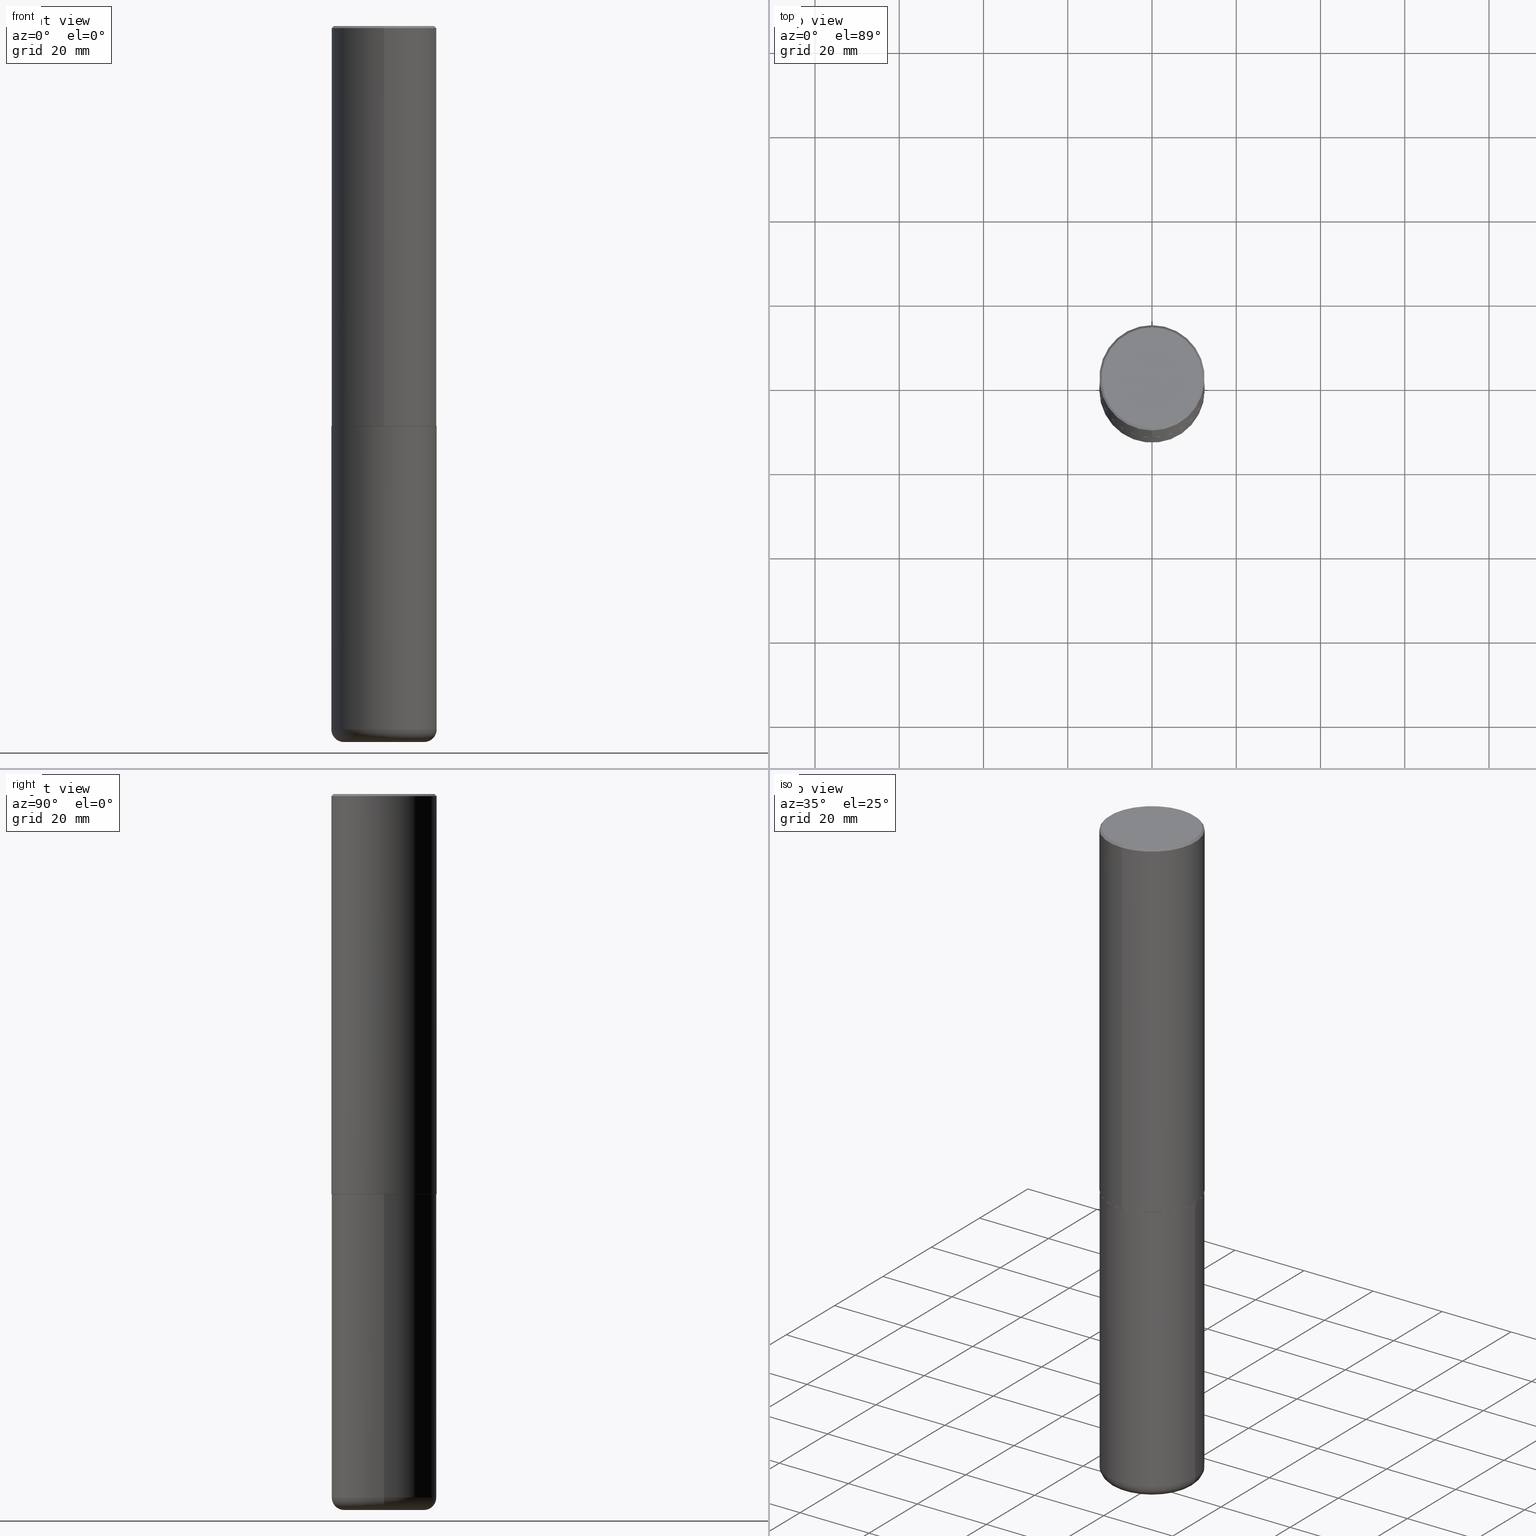
[diagram: canonical four-view strip — front | top / right | iso, engineering-drawing reading convention]
A machine part, canonical four-view strip (front | top / right | iso — engineering-drawing reading convention). The complete STEP part file that produces these views, byte-faithful:
ISO-10303-21;
HEADER;
FILE_DESCRIPTION (( 'STEP AP203' ),
    '1' );
FILE_NAME ('47627.STEP',
    '2024-03-06T19:43:34',
    ( '' ),
    ( '' ),
    'SwSTEP 2.0',
    'SolidWorks 2023',
    '' );
FILE_SCHEMA (( 'CONFIG_CONTROL_DESIGN' ));
ENDSEC;

DATA;
#1 = DIRECTION ( 'NONE',  ( 6.982962677686265922E-15, 1.000000000000000000, -3.486624039460257331E-15 ) ) ;
#2 = CARTESIAN_POINT ( 'NONE',  ( 1.607846830690603466E-28, -2.295579150662591525E-14, -6.574799999999999756 ) ) ;
#3 = CIRCLE ( 'NONE', #237, 0.4921500000000003650 ) ;
#4 = EDGE_CURVE ( 'NONE', #90, #194, #148, .T. ) ;
#5 = CALENDAR_DATE ( 2024, 6, 3 ) ;
#6 = EDGE_LOOP ( 'NONE', ( #307, #13, #275, #348 ) ) ;
#7 = FACE_OUTER_BOUND ( 'NONE', #107, .T. ) ;
#8 = EDGE_CURVE ( 'NONE', #330, #132, #64, .T. ) ;
#9 = ORIENTED_EDGE ( 'NONE', *, *, #235, .T. ) ;
#10 = ORIENTED_EDGE ( 'NONE', *, *, #299, .F. ) ;
#11 = PERSON_AND_ORGANIZATION_ROLE ( 'design_supplier' ) ;
#12 = CC_DESIGN_APPROVAL ( #239, ( #68 ) ) ;
#13 = ORIENTED_EDGE ( 'NONE', *, *, #59, .T. ) ;
#14 = EDGE_CURVE ( 'NONE', #160, #132, #167, .T. ) ;
#15 = PERSON_AND_ORGANIZATION ( #364, #173 ) ;
#16 = LINE ( 'NONE', #143, #161 ) ;
#17 = DIRECTION ( 'NONE',  ( 1.000000000000000000, -6.982962677686265133E-15, 0.000000000000000000 ) ) ;
#18 = AXIS2_PLACEMENT_3D ( 'NONE', #259, #310, #17 ) ;
#19 = CC_DESIGN_PERSON_AND_ORGANIZATION_ASSIGNMENT ( #327, #229, ( #68 ) ) ;
#20 = FACE_OUTER_BOUND ( 'NONE', #371, .T. ) ;
#21 = ORIENTED_EDGE ( 'NONE', *, *, #389, .F. ) ;
#22 = CARTESIAN_POINT ( 'NONE',  ( 3.366835455046432084E-15, 0.4721499999999996255, -1.426540264649568516E-15 ) ) ;
#23 = EDGE_LOOP ( 'NONE', ( #211, #81, #202, #304 ) ) ;
#24 = DESIGN_CONTEXT ( 'detailed design', #322, 'design' ) ;
#25 = FACE_OUTER_BOUND ( 'NONE', #120, .T. ) ;
#26 = CARTESIAN_POINT ( 'NONE',  ( -0.4921499999999999764, 3.496936074043332897E-15, -2.420853904668951509E-29 ) ) ;
#27 = CARTESIAN_POINT ( 'NONE',  ( 3.493383360364624690E-15, 0.4911499999999869304, -3.740100000000001312 ) ) ;
#28 = AXIS2_PLACEMENT_3D ( 'NONE', #222, #156, #353 ) ;
#29 = FACE_OUTER_BOUND ( 'NONE', #409, .T. ) ;
#30 = DIRECTION ( 'NONE',  ( -2.445468806185136597E-29, 3.491481338843145583E-15, 1.000000000000000000 ) ) ;
#31 = DIRECTION ( 'NONE',  ( -4.851104656540955597E-15, -0.7071067811865487940, -0.7071067811865461294 ) ) ;
#32 = AXIS2_PLACEMENT_3D ( 'NONE', #401, #375, #349 ) ;
#33 = EDGE_CURVE ( 'NONE', #378, #305, #276, .T. ) ;
#34 = CONICAL_SURFACE ( 'NONE', #187, 0.4921499999999999209, 0.7853981633974467247 ) ;
#35 =( NAMED_UNIT ( * ) PLANE_ANGLE_UNIT ( ) SI_UNIT ( $, .RADIAN. ) );
#36 =( LENGTH_UNIT ( ) NAMED_UNIT ( * ) SI_UNIT ( $, .METRE. ) );
#37 = ORIENTED_EDGE ( 'NONE', *, *, #193, .F. ) ;
#38 = PERSON_AND_ORGANIZATION ( #364, #173 ) ;
#39 = APPLICATION_PROTOCOL_DEFINITION ( 'international standard', 'config_control_design', 1994, #102 ) ;
#40 = CLOSED_SHELL ( 'NONE', ( #99, #157, #372, #252, #268, #262, #73, #302 ) ) ;
#41 = CC_DESIGN_PERSON_AND_ORGANIZATION_ASSIGNMENT ( #136, #207, ( #257 ) ) ;
#42 = CARTESIAN_POINT ( 'NONE',  ( 0.000000000000000000, 0.000000000000000000, 0.000000000000000000 ) ) ;
#43 = ORIENTED_EDGE ( 'NONE', *, *, #290, .F. ) ;
#44 = AXIS2_PLACEMENT_3D ( 'NONE', #352, #225, #113 ) ;
#45 = CALENDAR_DATE ( 2024, 6, 3 ) ;
#46 = SHAPE_DEFINITION_REPRESENTATION ( #295, #324 ) ;
#47 = CC_DESIGN_DATE_AND_TIME_ASSIGNMENT ( #175, #395, ( #224 ) ) ;
#48 = AXIS2_PLACEMENT_3D ( 'NONE', #346, #65, #153 ) ;
#49 = PERSON_AND_ORGANIZATION_ROLE ( 'classification_officer' ) ;
#50 = APPROVAL_PERSON_ORGANIZATION ( #397, #86, #306 ) ;
#51 = CIRCLE ( 'NONE', #393, 0.4911499999999999755 ) ;
#52 = LINE ( 'NONE', #110, #379 ) ;
#53 = ORIENTED_EDGE ( 'NONE', *, *, #114, .T. ) ;
#54 = CIRCLE ( 'NONE', #335, 0.4921500000000003650 ) ;
#55 = DIRECTION ( 'NONE',  ( -6.982962677686265922E-15, -1.000000000000000000, 3.490754157143982552E-15 ) ) ;
#56 = ORIENTED_EDGE ( 'NONE', *, *, #78, .T. ) ;
#57 = CARTESIAN_POINT ( 'NONE',  ( -3.307789109625541747E-15, -0.4721499999999996255, 1.869778885941491673E-15 ) ) ;
#58 = VERTEX_POINT ( 'NONE', #22 ) ;
#59 = EDGE_CURVE ( 'NONE', #90, #79, #3, .T. ) ;
#60 = DIRECTION ( 'NONE',  ( -6.982962677686265922E-15, -1.000000000000000000, 3.337287582609300506E-15 ) ) ;
#61 = MANIFOLD_SOLID_BREP ( 'Body-Move/Copy2[2]', #40 ) ;
#62 = ORIENTED_EDGE ( 'NONE', *, *, #396, .T. ) ;
#63 = DIRECTION ( 'NONE',  ( -2.445468806185136597E-29, 3.491481338843145583E-15, 1.000000000000000000 ) ) ;
#64 = LINE ( 'NONE', #26, #92 ) ;
#65 = DIRECTION ( 'NONE',  ( -2.445976594451651952E-29, 3.490754157143982552E-15, 1.000000000000000000 ) ) ;
#66 = ORIENTED_EDGE ( 'NONE', *, *, #133, .T. ) ;
#67 = COORDINATED_UNIVERSAL_TIME_OFFSET ( 5, 0, .BEHIND. ) ;
#68 = PRODUCT_DEFINITION ( 'UNKNOWN', '', #257, #24 ) ;
#69 = MECHANICAL_CONTEXT ( 'NONE', #102, 'mechanical' ) ;
#70 = DIRECTION ( 'NONE',  ( -6.982962677686265922E-15, -1.000000000000000000, 3.490754157143982946E-15 ) ) ;
#71 = DIRECTION ( 'NONE',  ( 1.000000000000000000, 0.000000000000000000, 0.000000000000000000 ) ) ;
#72 = APPROVAL_PERSON_ORGANIZATION ( #38, #109, #197 ) ;
#73 = ADVANCED_FACE ( 'NONE', ( #144 ), #384, .F. ) ;
#74 = PERSON_AND_ORGANIZATION ( #364, #173 ) ;
#75 = EDGE_CURVE ( 'NONE', #79, #178, #320, .T. ) ;
#76 = VECTOR ( 'NONE', #315, 39.37007874015748143 ) ;
#77 = COORDINATED_UNIVERSAL_TIME_OFFSET ( 5, 0, .BEHIND. ) ;
#78 = EDGE_CURVE ( 'NONE', #132, #160, #387, .T. ) ;
#79 = VERTEX_POINT ( 'NONE', #247 ) ;
#80 = DIRECTION ( 'NONE',  ( -2.445468806185136597E-29, 3.491481338843145583E-15, 1.000000000000000000 ) ) ;
#81 = ORIENTED_EDGE ( 'NONE', *, *, #389, .T. ) ;
#82 = CARTESIAN_POINT ( 'NONE',  ( 4.891953188903329688E-31, -6.981508314288001687E-17, -0.02000000000000010797 ) ) ;
#83 = CARTESIAN_POINT ( 'NONE',  ( 1.636727817291649966E-28, -2.336813545274328780E-14, -6.692899999999999849 ) ) ;
#84 = AXIS2_PLACEMENT_3D ( 'NONE', #180, #251, #312 ) ;
#85 = DIRECTION ( 'NONE',  ( 6.982962677686265922E-15, 1.000000000000000000, -3.486624039460257331E-15 ) ) ;
#86 = APPROVAL ( #106, 'UNSPECIFIED' ) ;
#87 = FACE_OUTER_BOUND ( 'NONE', #274, .T. ) ;
#88 = AXIS2_PLACEMENT_3D ( 'NONE', #184, #385, #150 ) ;
#89 = DIRECTION ( 'NONE',  ( 1.000000000000000000, -6.982962677686265133E-15, 0.000000000000000000 ) ) ;
#90 = VERTEX_POINT ( 'NONE', #376 ) ;
#91 = DIRECTION ( 'NONE',  ( 2.445976594451651392E-29, -3.490754157143982552E-15, -1.000000000000000000 ) ) ;
#92 = VECTOR ( 'NONE', #149, 39.37007874015748143 ) ;
#93 = APPROVAL_STATUS ( 'not_yet_approved' ) ;
#94 = ADVANCED_FACE ( 'NONE', ( #408 ), #119, .T. ) ;
#95 = DIRECTION ( 'NONE',  ( 5.024295867790978808E-15, 0.7071067811869604647, 0.7071067811861345698 ) ) ;
#96 = CC_DESIGN_APPROVAL ( #86, ( #224 ) ) ;
#97 = AXIS2_PLACEMENT_3D ( 'NONE', #82, #411, #292 ) ;
#98 = DATE_TIME_ROLE ( 'creation_date' ) ;
#99 = ADVANCED_FACE ( 'NONE', ( #183 ), #336, .T. ) ;
#100 = LINE ( 'NONE', #159, #152 ) ;
#101 = CARTESIAN_POINT ( 'NONE',  ( 0.000000000000000000, 0.000000000000000000, 0.000000000000000000 ) ) ;
#102 = APPLICATION_CONTEXT ( 'configuration controlled 3d designs of mechanical parts and assemblies' ) ;
#103 = ADVANCED_FACE ( 'NONE', ( #316 ), #405, .T. ) ;
#104 = CLOSED_SHELL ( 'NONE', ( #103, #204, #163, #130, #286, #94 ) ) ;
#105 = ORIENTED_EDGE ( 'NONE', *, *, #122, .F. ) ;
#106 = APPROVAL_STATUS ( 'not_yet_approved' ) ;
#107 = EDGE_LOOP ( 'NONE', ( #248, #56 ) ) ;
#108 = EDGE_CURVE ( 'NONE', #178, #194, #250, .T. ) ;
#109 = APPROVAL ( #164, 'UNSPECIFIED' ) ;
#110 = CARTESIAN_POINT ( 'NONE',  ( 3.436665081823295777E-15, 0.4921499999999998098, -0.02000000000000182188 ) ) ;
#111 = ORIENTED_EDGE ( 'NONE', *, *, #165, .F. ) ;
#112 = CIRCLE ( 'NONE', #97, 0.4921499999999999209 ) ;
#113 = DIRECTION ( 'NONE',  ( -1.000000000000000000, 6.982962677686265922E-15, -4.876176775795935793E-29 ) ) ;
#114 = EDGE_CURVE ( 'NONE', #378, #330, #267, .T. ) ;
#115 = DIRECTION ( 'NONE',  ( -2.445468806185136597E-29, 3.491481338843145583E-15, 1.000000000000000000 ) ) ;
#116 = DIRECTION ( 'NONE',  ( 6.982962677686265922E-15, 1.000000000000000000, -3.490754157143982552E-15 ) ) ;
#117 = DIRECTION ( 'NONE',  ( -2.445976594451651672E-29, 3.490754157143982552E-15, 1.000000000000000000 ) ) ;
#118 = CC_DESIGN_PERSON_AND_ORGANIZATION_ASSIGNMENT ( #232, #359, ( #357 ) ) ;
#119 = PLANE ( 'NONE',  #360 ) ;
#120 = EDGE_LOOP ( 'NONE', ( #340, #334, #368, #21 ) ) ;
#121 = ORIENTED_EDGE ( 'NONE', *, *, #345, .F. ) ;
#122 = EDGE_CURVE ( 'NONE', #305, #378, #145, .T. ) ;
#123 = CARTESIAN_POINT ( 'NONE',  ( 3.436665081823295777E-15, 0.4921499999999998098, -0.02000000000000182188 ) ) ;
#124 = CARTESIAN_POINT ( 'NONE',  ( 0.000000000000000000, 0.000000000000000000, 0.000000000000000000 ) ) ;
#125 = EDGE_LOOP ( 'NONE', ( #265, #277, #382, #139 ) ) ;
#126 = CARTESIAN_POINT ( 'NONE',  ( 0.000000000000000000, 0.000000000000000000, 0.000000000000000000 ) ) ;
#127 =( CONVERSION_BASED_UNIT ( 'INCH', #234 ) LENGTH_UNIT ( ) NAMED_UNIT ( #230 ) );
#128 = EDGE_LOOP ( 'NONE', ( #37, #10 ) ) ;
#129 = COORDINATED_UNIVERSAL_TIME_OFFSET ( 5, 0, .BEHIND. ) ;
#130 = ADVANCED_FACE ( 'NONE', ( #279 ), #399, .T. ) ;
#131 = COORDINATED_UNIVERSAL_TIME_OFFSET ( 5, 0, .BEHIND. ) ;
#132 = VERTEX_POINT ( 'NONE', #201 ) ;
#133 = EDGE_CURVE ( 'NONE', #58, #194, #52, .T. ) ;
#134 = AXIS2_PLACEMENT_3D ( 'NONE', #182, #314, #343 ) ;
#135 = CC_DESIGN_PERSON_AND_ORGANIZATION_ASSIGNMENT ( #74, #11, ( #257 ) ) ;
#136 = PERSON_AND_ORGANIZATION ( #364, #173 ) ;
#137 = PLANE ( 'NONE',  #44 ) ;
#138 = EDGE_LOOP ( 'NONE', ( #168, #291, #121, #203 ) ) ;
#139 = ORIENTED_EDGE ( 'NONE', *, *, #75, .F. ) ;
#140 = PRODUCT_RELATED_PRODUCT_CATEGORY ( 'detail', '', ( #357 ) ) ;
#141 = COORDINATED_UNIVERSAL_TIME_OFFSET ( 5, 0, .BEHIND. ) ;
#142 = AXIS2_PLACEMENT_3D ( 'NONE', #388, #166, #70 ) ;
#143 = CARTESIAN_POINT ( 'NONE',  ( 0.4921499999999999764, -3.436665081823295777E-15, 2.399810400207969603E-29 ) ) ;
#144 = FACE_OUTER_BOUND ( 'NONE', #128, .T. ) ;
#145 = CIRCLE ( 'NONE', #18, 0.3740499999999999381 ) ;
#146 = EDGE_CURVE ( 'NONE', #284, #160, #16, .T. ) ;
#147 = DIRECTION ( 'NONE',  ( 2.445976594451651952E-29, -3.490754157143982552E-15, -1.000000000000000000 ) ) ;
#148 = LINE ( 'NONE', #281, #76 ) ;
#149 = DIRECTION ( 'NONE',  ( -2.445468806185136877E-29, 3.491481338843145188E-15, 1.000000000000000000 ) ) ;
#150 = DIRECTION ( 'NONE',  ( -6.982962677686265922E-15, -1.000000000000000000, 3.337287582609300506E-15 ) ) ;
#151 = CARTESIAN_POINT ( 'NONE',  ( 9.148197060908621523E-29, -1.305576962313420868E-14, -3.740099999999999980 ) ) ;
#152 = VECTOR ( 'NONE', #191, 39.37007874015748143 ) ;
#153 = DIRECTION ( 'NONE',  ( -6.982962677686265922E-15, -1.000000000000000000, 3.337287582609300506E-15 ) ) ;
#154 = CARTESIAN_POINT ( 'NONE',  ( 9.148197060908621523E-29, -1.305576962313420868E-14, -3.740099999999999980 ) ) ;
#155 = DIRECTION ( 'NONE',  ( -6.982962677686266711E-15, -1.000000000000000000, 3.491481338843145583E-15 ) ) ;
#156 = DIRECTION ( 'NONE',  ( -2.445976594451651952E-29, 3.490754157143982552E-15, 1.000000000000000000 ) ) ;
#157 = ADVANCED_FACE ( 'NONE', ( #243 ), #332, .T. ) ;
#158 = CARTESIAN_POINT ( 'NONE',  ( 1.607846830690603466E-28, -2.295579150662591525E-14, -6.574799999999999756 ) ) ;
#159 = CARTESIAN_POINT ( 'NONE',  ( -3.429682119145517860E-15, -0.4911500000000130206, -3.740099999999998204 ) ) ;
#160 = VERTEX_POINT ( 'NONE', #172 ) ;
#161 = VECTOR ( 'NONE', #278, 39.37007874015748143 ) ;
#162 = APPROVAL_ROLE ( '' ) ;
#163 = ADVANCED_FACE ( 'NONE', ( #7 ), #137, .F. ) ;
#164 = APPROVAL_STATUS ( 'not_yet_approved' ) ;
#165 = EDGE_CURVE ( 'NONE', #205, #178, #179, .T. ) ;
#166 = DIRECTION ( 'NONE',  ( -2.445976594451651952E-29, 3.490754157143982552E-15, 1.000000000000000000 ) ) ;
#167 = CIRCLE ( 'NONE', #84, 0.4921499999999999764 ) ;
#168 = ORIENTED_EDGE ( 'NONE', *, *, #193, .T. ) ;
#169 = DIRECTION ( 'NONE',  ( -6.982962677686265922E-15, -1.000000000000000000, 3.490754157143982552E-15 ) ) ;
#170 = ORIENTED_EDGE ( 'NONE', *, *, #339, .T. ) ;
#171 = DATE_AND_TIME ( #5, #308 ) ;
#172 = CARTESIAN_POINT ( 'NONE',  ( 0.4921499999999999764, -1.649515443723054663E-14, -3.740100000000000424 ) ) ;
#173 = ORGANIZATION ( 'UNSPECIFIED', 'UNSPECIFIED', '' ) ;
#174 = VECTOR ( 'NONE', #31, 39.37007874015748854 ) ;
#175 = DATE_AND_TIME ( #45, #283 ) ;
#176 = DIRECTION ( 'NONE',  ( 4.937700262164540154E-15, 0.7071067811865440200, -0.7071067811865511255 ) ) ;
#177 = DIRECTION ( 'NONE',  ( 1.000000000000000000, -6.982962677686265922E-15, 0.000000000000000000 ) ) ;
#178 = VERTEX_POINT ( 'NONE', #415 ) ;
#179 = LINE ( 'NONE', #404, #174 ) ;
#180 = CARTESIAN_POINT ( 'NONE',  ( 9.146297882013029477E-29, -1.305848935540725085E-14, -3.740100000000000424 ) ) ;
#181 = ORIENTED_EDGE ( 'NONE', *, *, #122, .T. ) ;
#182 = CARTESIAN_POINT ( 'NONE',  ( -5.420756467185317189E-45, 7.736185299407739239E-31, 2.216193106459615290E-16 ) ) ;
#183 = FACE_OUTER_BOUND ( 'NONE', #138, .T. ) ;
#184 = CARTESIAN_POINT ( 'NONE',  ( 9.148197060908621523E-29, -1.305576962313420868E-14, -3.740099999999999980 ) ) ;
#185 = DIRECTION ( 'NONE',  ( -2.445976594451651952E-29, 3.490754157143982552E-15, 1.000000000000000000 ) ) ;
#186 = ORIENTED_EDGE ( 'NONE', *, *, #8, .T. ) ;
#187 = AXIS2_PLACEMENT_3D ( 'NONE', #361, #233, #1 ) ;
#188 = FACE_OUTER_BOUND ( 'NONE', #342, .T. ) ;
#189 = ORIENTED_EDGE ( 'NONE', *, *, #235, .F. ) ;
#190 = CARTESIAN_POINT ( 'NONE',  ( 0.3740499999999999381, -2.556776869621446119E-14, -6.574799999999999756 ) ) ;
#191 = DIRECTION ( 'NONE',  ( -4.937700262167413974E-15, -0.7071067811869555797, 0.7071067811861394548 ) ) ;
#192 = LOCAL_TIME ( 14, 43, 34.00000000000000000, #131 ) ;
#193 = EDGE_CURVE ( 'NONE', #242, #215, #51, .T. ) ;
#194 = VERTEX_POINT ( 'NONE', #123 ) ;
#195 = CALENDAR_DATE ( 2024, 6, 3 ) ;
#196 = APPROVAL_DATE_TIME ( #326, #239 ) ;
#197 = APPROVAL_ROLE ( '' ) ;
#198 = VECTOR ( 'NONE', #95, 39.37007874015748143 ) ;
#199 = ORIENTED_EDGE ( 'NONE', *, *, #339, .F. ) ;
#200 = ORIENTED_EDGE ( 'NONE', *, *, #417, .F. ) ;
#201 = CARTESIAN_POINT ( 'NONE',  ( -0.4921499999999999764, -1.451020435697325173E-14, -3.740100000000000424 ) ) ;
#202 = ORIENTED_EDGE ( 'NONE', *, *, #146, .T. ) ;
#203 = ORIENTED_EDGE ( 'NONE', *, *, #396, .F. ) ;
#204 = ADVANCED_FACE ( 'NONE', ( #188 ), #212, .T. ) ;
#205 = VERTEX_POINT ( 'NONE', #57 ) ;
#206 = CONICAL_SURFACE ( 'NONE', #354, 0.4921499999999999209, 0.7853981633974467247 ) ;
#207 = PERSON_AND_ORGANIZATION_ROLE ( 'creator' ) ;
#208 = DIRECTION ( 'NONE',  ( 1.000000000000000000, -6.982962677686265922E-15, 4.876176775795935793E-29 ) ) ;
#209 = AXIS2_PLACEMENT_3D ( 'NONE', #151, #244, #216 ) ;
#210 = AXIS2_PLACEMENT_3D ( 'NONE', #126, #285, #55 ) ;
#211 = ORIENTED_EDGE ( 'NONE', *, *, #8, .F. ) ;
#212 = TOROIDAL_SURFACE ( 'NONE', #32, 0.3740499999999999381, 0.1181000000000000660 ) ;
#213 = CIRCLE ( 'NONE', #287, 0.4921500000000000319 ) ;
#214 = CARTESIAN_POINT ( 'NONE',  ( 4.891953188903329688E-31, -6.981508314288001687E-17, -0.02000000000000010797 ) ) ;
#215 = VERTEX_POINT ( 'NONE', #27 ) ;
#216 = DIRECTION ( 'NONE',  ( -6.982962677686265922E-15, -1.000000000000000000, 3.490754157143982552E-15 ) ) ;
#217 = CARTESIAN_POINT ( 'NONE',  ( -3.429682119145517860E-15, -0.4911500000000130206, -3.740099999999998204 ) ) ;
#218 = VECTOR ( 'NONE', #117, 39.37007874015748143 ) ;
#219 = DIRECTION ( 'NONE',  ( 2.438088387897960049E-29, -3.491481338843145188E-15, -1.000000000000000000 ) ) ;
#220 = ORIENTED_EDGE ( 'NONE', *, *, #59, .F. ) ;
#221 = FACE_OUTER_BOUND ( 'NONE', #313, .T. ) ;
#222 = CARTESIAN_POINT ( 'NONE',  ( 4.891953188903329688E-31, -6.981508314288001687E-17, -0.02000000000000010797 ) ) ;
#223 = ORIENTED_EDGE ( 'NONE', *, *, #238, .T. ) ;
#224 = SECURITY_CLASSIFICATION ( '', '', #303 ) ;
#225 = DIRECTION ( 'NONE',  ( 2.438088387897960049E-29, -3.491481338843145188E-15, -1.000000000000000000 ) ) ;
#226 = DIRECTION ( 'NONE',  ( -6.982962677686265922E-15, -1.000000000000000000, 3.337287582609300506E-15 ) ) ;
#227 = CARTESIAN_POINT ( 'NONE',  ( 3.297005828269567997E-15, 0.4721499999999996255, -1.537349919972549256E-15 ) ) ;
#228 = CARTESIAN_POINT ( 'NONE',  ( 9.146297882013029477E-29, -1.305848935540725085E-14, -3.740100000000000424 ) ) ;
#229 = PERSON_AND_ORGANIZATION_ROLE ( 'creator' ) ;
#230 = DIMENSIONAL_EXPONENTS ( 1.000000000000000000, 0.000000000000000000, 0.000000000000000000, 0.000000000000000000, 0.000000000000000000, 0.000000000000000000, 0.000000000000000000 ) ;
#231 = CIRCLE ( 'NONE', #88, 0.4911499999999999755 ) ;
#232 = PERSON_AND_ORGANIZATION ( #364, #173 ) ;
#233 = DIRECTION ( 'NONE',  ( 2.445976594451651952E-29, -3.490754157143982552E-15, -1.000000000000000000 ) ) ;
#234 = LENGTH_MEASURE_WITH_UNIT ( LENGTH_MEASURE( 0.02539999999999999897 ), #36 );
#235 = EDGE_CURVE ( 'NONE', #58, #205, #273, .T. ) ;
#236 = ORIENTED_EDGE ( 'NONE', *, *, #14, .F. ) ;
#237 = AXIS2_PLACEMENT_3D ( 'NONE', #373, #402, #289 ) ;
#238 = EDGE_CURVE ( 'NONE', #194, #178, #112, .T. ) ;
#239 = APPROVAL ( #93, 'UNSPECIFIED' ) ;
#240 = DATE_AND_TIME ( #269, #192 ) ;
#241 = AXIS2_PLACEMENT_3D ( 'NONE', #154, #185, #226 ) ;
#242 = VERTEX_POINT ( 'NONE', #217 ) ;
#243 = FACE_OUTER_BOUND ( 'NONE', #125, .T. ) ;
#244 = DIRECTION ( 'NONE',  ( -2.445976594451651392E-29, 3.490754157143982552E-15, 1.000000000000000000 ) ) ;
#245 = EDGE_LOOP ( 'NONE', ( #170, #186, #236, #400 ) ) ;
#246 = LOCAL_TIME ( 14, 43, 34.00000000000000000, #129 ) ;
#247 = CARTESIAN_POINT ( 'NONE',  ( -3.436665081823207030E-15, -0.4921500000000134101, -3.739099999999998758 ) ) ;
#248 = ORIENTED_EDGE ( 'NONE', *, *, #14, .T. ) ;
#249 = DIRECTION ( 'NONE',  ( 1.000000000000000000, -6.982962677686265133E-15, 0.000000000000000000 ) ) ;
#250 = CIRCLE ( 'NONE', #28, 0.4921499999999999209 ) ;
#251 = DIRECTION ( 'NONE',  ( -2.445468806185136597E-29, 3.491481338843145583E-15, 1.000000000000000000 ) ) ;
#252 = ADVANCED_FACE ( 'NONE', ( #29 ), #206, .T. ) ;
#253 = DIRECTION ( 'NONE',  ( -2.445976594451651952E-29, 3.490754157143982552E-15, 1.000000000000000000 ) ) ;
#254 = CARTESIAN_POINT ( 'NONE',  ( -0.3740499999999999381, -2.029800640351526055E-14, -6.574799999999999756 ) ) ;
#255 = ORIENTED_EDGE ( 'NONE', *, *, #299, .T. ) ;
#256 = TOROIDAL_SURFACE ( 'NONE', #350, 0.3740499999999999381, 0.1181000000000000660 ) ;
#257 = PRODUCT_DEFINITION_FORMATION_WITH_SPECIFIED_SOURCE ( 'ANY', '', #357, .NOT_KNOWN. ) ;
#258 = DIRECTION ( 'NONE',  ( 1.000000000000000000, -6.982962677686270655E-15, 0.000000000000000000 ) ) ;
#259 = CARTESIAN_POINT ( 'NONE',  ( 1.636727817291649966E-28, -2.336813545274328780E-14, -6.692899999999999849 ) ) ;
#260 = UNCERTAINTY_MEASURE_WITH_UNIT (LENGTH_MEASURE( 1.000000000000000082E-05 ), #127, 'distance_accuracy_value', 'NONE');
#261 = PLANE ( 'NONE',  #414 ) ;
#262 = ADVANCED_FACE ( 'NONE', ( #221 ), #366, .T. ) ;
#263 = APPROVAL_PERSON_ORGANIZATION ( #323, #239, #162 ) ;
#264 = AXIS2_PLACEMENT_3D ( 'NONE', #158, #386, #249 ) ;
#265 = ORIENTED_EDGE ( 'NONE', *, *, #345, .T. ) ;
#266 = EDGE_LOOP ( 'NONE', ( #105, #374 ) ) ;
#267 = CIRCLE ( 'NONE', #300, 0.1181000000000000383 ) ;
#268 = ADVANCED_FACE ( 'NONE', ( #355 ), #319, .T. ) ;
#269 = CALENDAR_DATE ( 2024, 6, 3 ) ;
#270 = CC_DESIGN_PERSON_AND_ORGANIZATION_ASSIGNMENT ( #15, #49, ( #224 ) ) ;
#271 = CARTESIAN_POINT ( 'NONE',  ( 0.000000000000000000, 0.000000000000000000, 0.000000000000000000 ) ) ;
#272 = CIRCLE ( 'NONE', #370, 0.1181000000000000383 ) ;
#273 = CIRCLE ( 'NONE', #134, 0.4721499999999996255 ) ;
#274 = EDGE_LOOP ( 'NONE', ( #344, #394, #410, #403 ) ) ;
#275 = ORIENTED_EDGE ( 'NONE', *, *, #75, .T. ) ;
#276 = CIRCLE ( 'NONE', #325, 0.3740499999999999381 ) ;
#277 = ORIENTED_EDGE ( 'NONE', *, *, #4, .T. ) ;
#278 = DIRECTION ( 'NONE',  ( -2.445468806185136877E-29, 3.491481338843145188E-15, 1.000000000000000000 ) ) ;
#279 = FACE_OUTER_BOUND ( 'NONE', #23, .T. ) ;
#280 = CARTESIAN_POINT ( 'NONE',  ( 9.148197060908621523E-29, -1.305576962313420868E-14, -3.740099999999999980 ) ) ;
#281 = CARTESIAN_POINT ( 'NONE',  ( 3.496936074043333291E-15, 0.4921500000000000874, -1.717974658438411319E-15 ) ) ;
#282 = CARTESIAN_POINT ( 'NONE',  ( -3.436665081823296565E-15, -0.4921500000000000874, 1.717974658438411319E-15 ) ) ;
#283 = LOCAL_TIME ( 14, 43, 34.00000000000000000, #77 ) ;
#284 = VERTEX_POINT ( 'NONE', #406 ) ;
#285 = DIRECTION ( 'NONE',  ( -2.445976594451651952E-29, 3.490754157143982552E-15, 1.000000000000000000 ) ) ;
#286 = ADVANCED_FACE ( 'NONE', ( #25 ), #256, .T. ) ;
#287 = AXIS2_PLACEMENT_3D ( 'NONE', #2, #416, #296 ) ;
#288 = DIRECTION ( 'NONE',  ( -2.445976594451651952E-29, 3.490754157143982552E-15, 1.000000000000000000 ) ) ;
#289 = DIRECTION ( 'NONE',  ( -6.982962677686265922E-15, -1.000000000000000000, 3.330506545156063496E-15 ) ) ;
#290 = EDGE_CURVE ( 'NONE', #305, #284, #272, .T. ) ;
#291 = ORIENTED_EDGE ( 'NONE', *, *, #417, .T. ) ;
#292 = DIRECTION ( 'NONE',  ( -6.982962677686265922E-15, -1.000000000000000000, 3.486624039460257331E-15 ) ) ;
#293 = DIRECTION ( 'NONE',  ( 7.105427357601001859E-15, 1.000000000000000000, -3.491481338843145583E-15 ) ) ;
#294 = DIRECTION ( 'NONE',  ( 1.000000000000000000, -6.982962677686266711E-15, 4.883557194083112340E-29 ) ) ;
#295 = PRODUCT_DEFINITION_SHAPE ( 'NONE', 'NONE',  #68 ) ;
#296 = DIRECTION ( 'NONE',  ( 1.000000000000000000, -6.982962677686265133E-15, 0.000000000000000000 ) ) ;
#297 = CALENDAR_DATE ( 2024, 6, 3 ) ;
#298 = APPLICATION_PROTOCOL_DEFINITION ( 'international standard', 'config_control_design', 1994, #322 ) ;
#299 = EDGE_CURVE ( 'NONE', #215, #242, #231, .T. ) ;
#300 = AXIS2_PLACEMENT_3D ( 'NONE', #254, #293, #351 ) ;
#301 = CARTESIAN_POINT ( 'NONE',  ( 3.489830646685823002E-15, 0.4911499999999869304, -3.740100000000001312 ) ) ;
#302 = ADVANCED_FACE ( 'NONE', ( #20 ), #261, .F. ) ;
#303 = SECURITY_CLASSIFICATION_LEVEL ( 'unclassified' ) ;
#304 = ORIENTED_EDGE ( 'NONE', *, *, #78, .F. ) ;
#305 = VERTEX_POINT ( 'NONE', #321 ) ;
#306 = APPROVAL_ROLE ( '' ) ;
#307 = ORIENTED_EDGE ( 'NONE', *, *, #4, .F. ) ;
#308 = LOCAL_TIME ( 14, 43, 34.00000000000000000, #141 ) ;
#309 = CIRCLE ( 'NONE', #264, 0.4921500000000000319 ) ;
#310 = DIRECTION ( 'NONE',  ( -2.445468806185136597E-29, 3.491481338843145583E-15, 1.000000000000000000 ) ) ;
#311 = CARTESIAN_POINT ( 'NONE',  ( 1.607846830690603466E-28, -2.295579150662591525E-14, -6.574799999999999756 ) ) ;
#312 = DIRECTION ( 'NONE',  ( 1.000000000000000000, -6.982962677686265922E-15, 0.000000000000000000 ) ) ;
#313 = EDGE_LOOP ( 'NONE', ( #200, #255, #62, #220 ) ) ;
#314 = DIRECTION ( 'NONE',  ( -2.445976594451651952E-29, 3.490754157143982552E-15, 1.000000000000000000 ) ) ;
#315 = DIRECTION ( 'NONE',  ( -2.445976594451651672E-29, 3.490754157143982552E-15, 1.000000000000000000 ) ) ;
#316 = FACE_OUTER_BOUND ( 'NONE', #245, .T. ) ;
#317 = LOCAL_TIME ( 14, 43, 34.00000000000000000, #67 ) ;
#318 = CARTESIAN_POINT ( 'NONE',  ( -0.4921499999999999764, -1.945885543258258157E-14, -6.574799999999999756 ) ) ;
#319 = CYLINDRICAL_SURFACE ( 'NONE', #210, 0.4921500000000000874 ) ;
#320 = LINE ( 'NONE', #282, #218 ) ;
#321 = CARTESIAN_POINT ( 'NONE',  ( 0.3740499999999999381, -2.598011264233183690E-14, -6.692899999999999849 ) ) ;
#322 = APPLICATION_CONTEXT ( 'configuration controlled 3d designs of mechanical parts and assemblies' ) ;
#323 = PERSON_AND_ORGANIZATION ( #364, #173 ) ;
#324 = ADVANCED_BREP_SHAPE_REPRESENTATION ( '47627', ( #337, #61, #356 ), #377 ) ;
#325 = AXIS2_PLACEMENT_3D ( 'NONE', #412, #80, #89 ) ;
#326 = DATE_AND_TIME ( #195, #246 ) ;
#327 = PERSON_AND_ORGANIZATION ( #364, #173 ) ;
#328 = CC_DESIGN_DATE_AND_TIME_ASSIGNMENT ( #391, #98, ( #68 ) ) ;
#329 = DIRECTION ( 'NONE',  ( 0.000000000000000000, 0.000000000000000000, 1.000000000000000000 ) ) ;
#330 = VERTEX_POINT ( 'NONE', #318 ) ;
#331 = AXIS2_PLACEMENT_3D ( 'NONE', #228, #115, #177 ) ;
#332 = CYLINDRICAL_SURFACE ( 'NONE', #365, 0.4921500000000000874 ) ;
#333 = DIRECTION ( 'NONE',  ( -2.445976594451651952E-29, 3.490754157143982552E-15, 1.000000000000000000 ) ) ;
#334 = ORIENTED_EDGE ( 'NONE', *, *, #33, .T. ) ;
#335 = AXIS2_PLACEMENT_3D ( 'NONE', #380, #253, #383 ) ;
#336 = CONICAL_SURFACE ( 'NONE', #241, 0.4911499999999999755, 0.7853981633980288146 ) ;
#337 = MANIFOLD_SOLID_BREP ( 'Body-Move/Copy2[1]', #104 ) ;
#338 = APPROVAL_DATE_TIME ( #171, #86 ) ;
#339 = EDGE_CURVE ( 'NONE', #284, #330, #309, .T. ) ;
#340 = ORIENTED_EDGE ( 'NONE', *, *, #114, .F. ) ;
#341 = CC_DESIGN_SECURITY_CLASSIFICATION ( #224, ( #257 ) ) ;
#342 = EDGE_LOOP ( 'NONE', ( #181, #53, #199, #43 ) ) ;
#343 = DIRECTION ( 'NONE',  ( -6.982962677686265922E-15, -1.000000000000000000, 3.490754157143982946E-15 ) ) ;
#344 = ORIENTED_EDGE ( 'NONE', *, *, #398, .F. ) ;
#345 = EDGE_CURVE ( 'NONE', #79, #90, #54, .T. ) ;
#346 = CARTESIAN_POINT ( 'NONE',  ( 9.148197060908621523E-29, -1.305576962313420868E-14, -3.740099999999999980 ) ) ;
#347 = DIRECTION ( 'NONE',  ( -1.000000000000000000, 6.982962677686265922E-15, -4.876176775795935793E-29 ) ) ;
#348 = ORIENTED_EDGE ( 'NONE', *, *, #238, .F. ) ;
#349 = DIRECTION ( 'NONE',  ( 1.000000000000000000, -6.982962677686266711E-15, 4.883557194083112340E-29 ) ) ;
#350 = AXIS2_PLACEMENT_3D ( 'NONE', #311, #63, #294 ) ;
#351 = DIRECTION ( 'NONE',  ( -1.000000000000000000, 7.105427357601001859E-15, 0.000000000000000000 ) ) ;
#352 = CARTESIAN_POINT ( 'NONE',  ( 9.146297882013029477E-29, -1.305848935540725085E-14, -3.740100000000000424 ) ) ;
#353 = DIRECTION ( 'NONE',  ( -6.982962677686265922E-15, -1.000000000000000000, 3.486624039460257331E-15 ) ) ;
#354 = AXIS2_PLACEMENT_3D ( 'NONE', #214, #147, #85 ) ;
#355 = FACE_OUTER_BOUND ( 'NONE', #6, .T. ) ;
#356 = AXIS2_PLACEMENT_3D ( 'NONE', #271, #329, #71 ) ;
#357 = PRODUCT ( '47627', '47627', '', ( #69 ) ) ;
#358 = CARTESIAN_POINT ( 'NONE',  ( -0.3740499999999999381, -2.008460289110760576E-14, -6.692899999999999849 ) ) ;
#359 = PERSON_AND_ORGANIZATION_ROLE ( 'design_owner' ) ;
#360 = AXIS2_PLACEMENT_3D ( 'NONE', #83, #219, #347 ) ;
#361 = CARTESIAN_POINT ( 'NONE',  ( 4.891953188903329688E-31, -6.981508314288001687E-17, -0.02000000000000010797 ) ) ;
#362 =( NAMED_UNIT ( * ) SI_UNIT ( $, .STERADIAN. ) SOLID_ANGLE_UNIT ( ) );
#363 = CIRCLE ( 'NONE', #142, 0.4721499999999996255 ) ;
#364 = PERSON ( 'UNSPECIFIED', 'UNSPECIFIED', 'UNSPECIFIED', ('UNSPECIFIED'), ('UNSPECIFIED'), ('UNSPECIFIED') ) ;
#365 = AXIS2_PLACEMENT_3D ( 'NONE', #42, #333, #169 ) ;
#366 = CONICAL_SURFACE ( 'NONE', #48, 0.4911499999999999755, 0.7853981633980288146 ) ;
#367 = DIRECTION ( 'NONE',  ( -2.445468806185136597E-29, 3.491481338843145583E-15, 1.000000000000000000 ) ) ;
#368 = ORIENTED_EDGE ( 'NONE', *, *, #290, .T. ) ;
#369 = APPROVAL_DATE_TIME ( #240, #109 ) ;
#370 = AXIS2_PLACEMENT_3D ( 'NONE', #190, #155, #258 ) ;
#371 = EDGE_LOOP ( 'NONE', ( #9, #407 ) ) ;
#372 = ADVANCED_FACE ( 'NONE', ( #87 ), #34, .T. ) ;
#373 = CARTESIAN_POINT ( 'NONE',  ( 9.145751084314172604E-29, -1.305227886897706845E-14, -3.739100000000000534 ) ) ;
#374 = ORIENTED_EDGE ( 'NONE', *, *, #33, .F. ) ;
#375 = DIRECTION ( 'NONE',  ( -2.445468806185136597E-29, 3.491481338843145583E-15, 1.000000000000000000 ) ) ;
#376 = CARTESIAN_POINT ( 'NONE',  ( 3.496936074043380229E-15, 0.4921499999999873198, -3.739100000000002311 ) ) ;
#377 =( GEOMETRIC_REPRESENTATION_CONTEXT ( 3 ) GLOBAL_UNCERTAINTY_ASSIGNED_CONTEXT ( ( #260 ) ) GLOBAL_UNIT_ASSIGNED_CONTEXT ( ( #127, #35, #362 ) ) REPRESENTATION_CONTEXT ( 'NONE', 'WORKASPACE' ) );
#378 = VERTEX_POINT ( 'NONE', #358 ) ;
#379 = VECTOR ( 'NONE', #176, 39.37007874015748143 ) ;
#380 = CARTESIAN_POINT ( 'NONE',  ( 9.145751084314172604E-29, -1.305227886897706845E-14, -3.739100000000000534 ) ) ;
#381 = DIRECTION ( 'NONE',  ( 1.000000000000000000, -6.982962677686265922E-15, 4.876176775795935793E-29 ) ) ;
#382 = ORIENTED_EDGE ( 'NONE', *, *, #108, .F. ) ;
#383 = DIRECTION ( 'NONE',  ( -6.982962677686265922E-15, -1.000000000000000000, 3.330506545156063496E-15 ) ) ;
#384 = PLANE ( 'NONE',  #209 ) ;
#385 = DIRECTION ( 'NONE',  ( -2.445976594451651952E-29, 3.490754157143982552E-15, 1.000000000000000000 ) ) ;
#386 = DIRECTION ( 'NONE',  ( -2.445468806185136597E-29, 3.491481338843145583E-15, 1.000000000000000000 ) ) ;
#387 = CIRCLE ( 'NONE', #331, 0.4921499999999999764 ) ;
#388 = CARTESIAN_POINT ( 'NONE',  ( -5.420756467185317189E-45, 7.736185299407739239E-31, 2.216193106459615290E-16 ) ) ;
#389 = EDGE_CURVE ( 'NONE', #330, #284, #213, .T. ) ;
#390 = LINE ( 'NONE', #301, #198 ) ;
#391 = DATE_AND_TIME ( #297, #317 ) ;
#392 = AXIS2_PLACEMENT_3D ( 'NONE', #124, #30, #381 ) ;
#393 = AXIS2_PLACEMENT_3D ( 'NONE', #280, #288, #60 ) ;
#394 = ORIENTED_EDGE ( 'NONE', *, *, #165, .T. ) ;
#395 = DATE_TIME_ROLE ( 'classification_date' ) ;
#396 = EDGE_CURVE ( 'NONE', #242, #79, #100, .T. ) ;
#397 = PERSON_AND_ORGANIZATION ( #364, #173 ) ;
#398 = EDGE_CURVE ( 'NONE', #205, #58, #363, .T. ) ;
#399 = CYLINDRICAL_SURFACE ( 'NONE', #418, 0.4921499999999999764 ) ;
#400 = ORIENTED_EDGE ( 'NONE', *, *, #146, .F. ) ;
#401 = CARTESIAN_POINT ( 'NONE',  ( 1.607846830690603466E-28, -2.295579150662591525E-14, -6.574799999999999756 ) ) ;
#402 = DIRECTION ( 'NONE',  ( -2.445976594451651952E-29, 3.490754157143982552E-15, 1.000000000000000000 ) ) ;
#403 = ORIENTED_EDGE ( 'NONE', *, *, #133, .F. ) ;
#404 = CARTESIAN_POINT ( 'NONE',  ( -3.376394089603257868E-15, -0.4921499999999999764, -0.01999999999999839059 ) ) ;
#405 = CYLINDRICAL_SURFACE ( 'NONE', #392, 0.4921499999999999764 ) ;
#406 = CARTESIAN_POINT ( 'NONE',  ( 0.4921499999999999764, -2.639245658844920945E-14, -6.574799999999999756 ) ) ;
#407 = ORIENTED_EDGE ( 'NONE', *, *, #398, .T. ) ;
#408 = FACE_OUTER_BOUND ( 'NONE', #266, .T. ) ;
#409 = EDGE_LOOP ( 'NONE', ( #111, #189, #66, #223 ) ) ;
#410 = ORIENTED_EDGE ( 'NONE', *, *, #108, .T. ) ;
#411 = DIRECTION ( 'NONE',  ( -2.445976594451651952E-29, 3.490754157143982552E-15, 1.000000000000000000 ) ) ;
#412 = CARTESIAN_POINT ( 'NONE',  ( 1.636727817291649966E-28, -2.336813545274328780E-14, -6.692899999999999849 ) ) ;
#413 = CC_DESIGN_APPROVAL ( #109, ( #257 ) ) ;
#414 = AXIS2_PLACEMENT_3D ( 'NONE', #227, #91, #116 ) ;
#415 = CARTESIAN_POINT ( 'NONE',  ( -3.376394089603257868E-15, -0.4921499999999999764, -0.01999999999999839059 ) ) ;
#416 = DIRECTION ( 'NONE',  ( -2.445468806185136597E-29, 3.491481338843145583E-15, 1.000000000000000000 ) ) ;
#417 = EDGE_CURVE ( 'NONE', #215, #90, #390, .T. ) ;
#418 = AXIS2_PLACEMENT_3D ( 'NONE', #101, #367, #208 ) ;
ENDSEC;
END-ISO-10303-21;
